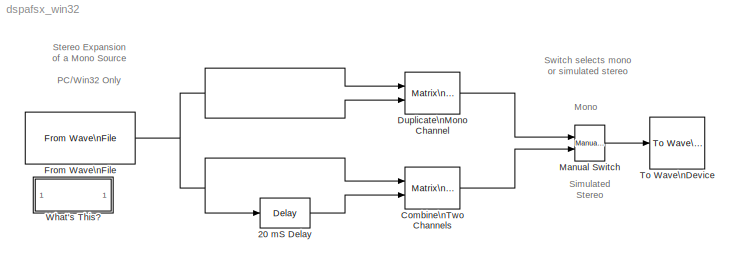
MODEL dspafsx_win32
KIND model
CONFIG AbsTol = auto
CONFIG FixedStep = auto
CONFIG MaxStep = auto
CONFIG MinStep = auto
CONFIG PreLoadFcn = load dspafxf;
CONFIG RelTol = 1e-3
CONFIG Solver = FixedStepDiscrete
CONFIG SolverMode = Auto
CONFIG StartTime = 0.0
CONFIG StopTime = 3.928
BLOCK [Reference] 20 mS Delay  REF=dspsigops/Delay
  Ports = [1, 1]
  SourceBlock = dspsigops/Delay
  SourceType = Delay
  delay = 20e-3 * 16000
  dif_ic_for_ch = off
  dif_ic_for_dly = off
  dly_unit = Samples
  ic = 0
  ic_detail = on
  reset_popup = None
BLOCK [Reference] Combine\nTwo Channels  REF=simulink/Math\nOperations/Matrix\nConcatenation
  Ports = [2, 1]
  SourceBlock = simulink/Math\nOperations/Matrix\nConcatenation
  SourceType = Matrix Concatenation
  catMethod = Horizontal
  numInports = 2
BLOCK [Reference] Duplicate\nMono Channel  REF=simulink/Math\nOperations/Matrix\nConcatenation
  Ports = [2, 1]
  SourceBlock = simulink/Math\nOperations/Matrix\nConcatenation
  SourceType = Matrix Concatenation
  catMethod = Horizontal
  numInports = 2
BLOCK [Reference] From Wave\nFile  REF=dspwin32/From Wave\nFile
  FileName = dspafsx_mono
  MinBufSize = 256
  Ports = [0, 1]
  SamplesPerFrame = 256
  SourceBlock = dspwin32/From Wave\nFile
  SourceType = From Wave File
  bLoop = off
  dType = Single
  firstSampleOutput = off
  lastSampleOutput = off
  restartMode = immediately after last sample
  timesToPlay = 1
BLOCK [Reference] Manual Switch  REF=simulink/Signal\nRouting/Manual Switch
  Ports = [2, 1]
  SourceBlock = simulink/Signal\nRouting/Manual Switch
  SourceType = Manual Switch
  action = 0
  sw = 0
BLOCK [Reference] To Wave\nDevice  REF=dspwin32/To Wave\nDevice
  Ports = [1]
  SourceBlock = dspwin32/To Wave\nDevice
  SourceType = To Wave Device
  bufDuration = 0.5
  initDelay = 0.1
BLOCK [SubSystem] What's This?
  MaskDisplay = disp('Info')
  MaskIconFrame = on
  MaskIconOpaque = on
  MaskIconRotate = none
  MaskIconUnits = autoscale
  MaskType = Frame-Based Simulation Info
  Ports = []
  TreatAsAtomicUnit = off
ANNOTATION (root): Mono
ANNOTATION (root): Simulated\nStereo
ANNOTATION (root): Stereo Expansion\nof a Mono Source\n\nPC/Win32 Only
ANNOTATION (root): Switch selects mono\nor simulated stereo
ANNOTATION What's This?: Stereo Signal Expansion\n\nFor more information on acoustic effects, see:\n http://www.harmony-central.com
LINE 20 mS Delay:1 -> Combine\nTwo Channels:2
LINE Combine\nTwo Channels:1 -> Manual Switch:2
LINE Duplicate\nMono Channel:1 -> Manual Switch:1
NET From Wave\nFile:1 -> 20 mS Delay:1, Combine\nTwo Channels:1, Duplicate\nMono Channel:1, Duplicate\nMono Channel:2
LINE Manual Switch:1 -> To Wave\nDevice:1
note: NET lines group one-source signal fan-out (src -> all destinations, sorted); 1:1 wires keep LINE
